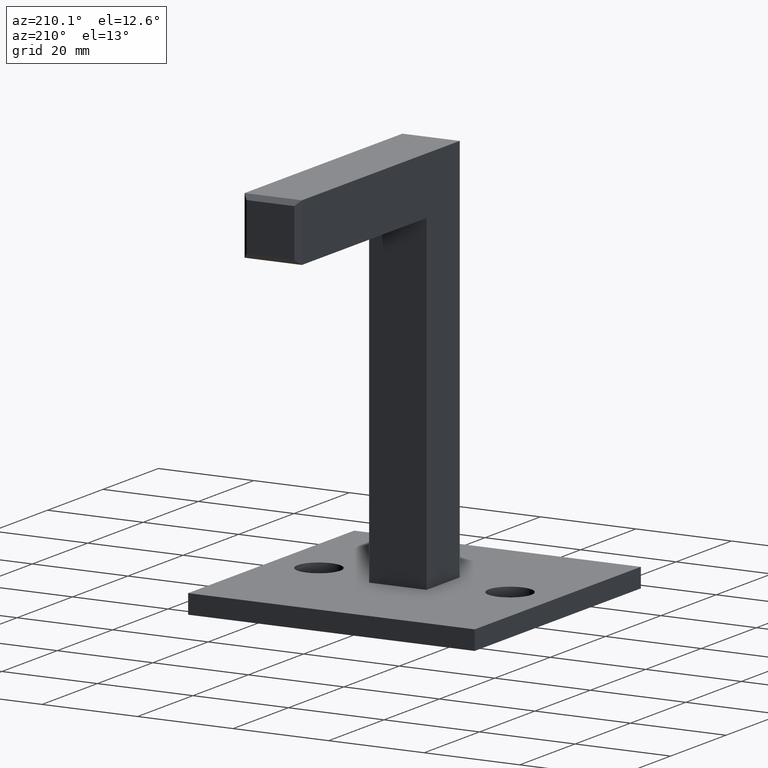
[diagram: clean part render]
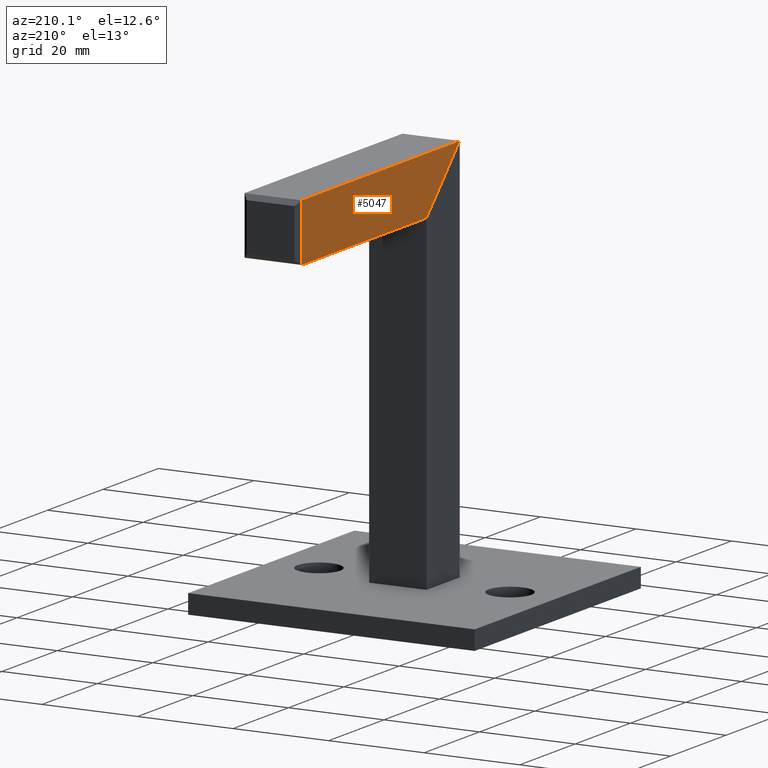
[diagram: same view with one face highlighted and labeled with its STEP entity id]
A machine part, auxiliary view. The second image highlights one B-rep face of the part: STEP entity #5047.
In plain terms, the highlighted planar face has unit normal (1, -0, 0).
Its self-contained STEP definition (entity closure, byte-faithful):
#223 = CARTESIAN_POINT ( 'NONE',  ( -6.000000000000000000, 50.99999999999998579, 73.00000000000000000 ) ) ;
#1098 = EDGE_CURVE ( 'NONE', #4271, #2849, #4440, .T. ) ;
#1118 = VECTOR ( 'NONE', #4356, 1000.000000000000000 ) ;
#1385 = FACE_OUTER_BOUND ( 'NONE', #4139, .T. ) ;
#1559 = LINE ( 'NONE', #2281, #9151 ) ;
#1679 = CARTESIAN_POINT ( 'NONE',  ( -5.999999999999994671, 42.49999999999999289, 36.50000000000000000 ) ) ;
#1692 = DIRECTION ( 'NONE',  ( 1.445602896647339163E-16, -1.608122649676636601E-16, -1.000000000000000000 ) ) ;
#1888 = EDGE_CURVE ( 'NONE', #3862, #4780, #1559, .T. ) ;
#2281 = CARTESIAN_POINT ( 'NONE',  ( -6.000000000000000000, -6.700000000000019718, 73.00000000000001421 ) ) ;
#2359 = ORIENTED_EDGE ( 'NONE', *, *, #1888, .F. ) ;
#2629 = CARTESIAN_POINT ( 'NONE',  ( -6.000000000000001776, -6.000000000000014211, 85.00000000000000000 ) ) ;
#2686 = DIRECTION ( 'NONE',  ( 1.445602896647339163E-16, 0.000000000000000000, -1.000000000000000000 ) ) ;
#2836 = EDGE_CURVE ( 'NONE', #2849, #4780, #5451, .T. ) ;
#2849 = VERTEX_POINT ( 'NONE', #6175 ) ;
#3301 = VECTOR ( 'NONE', #1692, 1000.000000000000000 ) ;
#3554 = AXIS2_PLACEMENT_3D ( 'NONE', #6276, #9242, #2686 ) ;
#3766 = DIRECTION ( 'NONE',  ( -1.022195611122249302E-16, -0.7071067811865475727, 0.7071067811865474617 ) ) ;
#3862 = VERTEX_POINT ( 'NONE', #7404 ) ;
#4139 = EDGE_LOOP ( 'NONE', ( #8234, #7705, #2359, #8778 ) ) ;
#4271 = VERTEX_POINT ( 'NONE', #2629 ) ;
#4356 = DIRECTION ( 'NONE',  ( 0.000000000000000000, 1.000000000000000000, 0.000000000000000000 ) ) ;
#4440 = LINE ( 'NONE', #7275, #1118 ) ;
#4780 = VERTEX_POINT ( 'NONE', #5754 ) ;
#5047 = ADVANCED_FACE ( 'NONE', ( #1385 ), #9211, .F. ) ;
#5451 = LINE ( 'NONE', #223, #3301 ) ;
#5754 = CARTESIAN_POINT ( 'NONE',  ( -6.000000000000000000, 50.99999999999998579, 73.00000000000001421 ) ) ;
#5764 = EDGE_CURVE ( 'NONE', #3862, #4271, #7459, .T. ) ;
#6175 = CARTESIAN_POINT ( 'NONE',  ( -6.000000000000001776, 50.99999999999998579, 85.00000000000000000 ) ) ;
#6276 = CARTESIAN_POINT ( 'NONE',  ( -6.000000000000000000, -6.700000000000019718, 73.00000000000001421 ) ) ;
#6427 = VECTOR ( 'NONE', #3766, 1000.000000000000000 ) ;
#7275 = CARTESIAN_POINT ( 'NONE',  ( -6.000000000000001776, -6.700000000000017941, 85.00000000000000000 ) ) ;
#7404 = CARTESIAN_POINT ( 'NONE',  ( -6.000000000000000000, 5.999999999999985789, 73.00000000000001421 ) ) ;
#7459 = LINE ( 'NONE', #1679, #6427 ) ;
#7705 = ORIENTED_EDGE ( 'NONE', *, *, #2836, .T. ) ;
#8196 = DIRECTION ( 'NONE',  ( 0.000000000000000000, 1.000000000000000000, 0.000000000000000000 ) ) ;
#8234 = ORIENTED_EDGE ( 'NONE', *, *, #1098, .T. ) ;
#8778 = ORIENTED_EDGE ( 'NONE', *, *, #5764, .T. ) ;
#9151 = VECTOR ( 'NONE', #8196, 1000.000000000000000 ) ;
#9211 = PLANE ( 'NONE',  #3554 ) ;
#9242 = DIRECTION ( 'NONE',  ( 1.000000000000000000, -0.000000000000000000, 1.445602896647339163E-16 ) ) ;